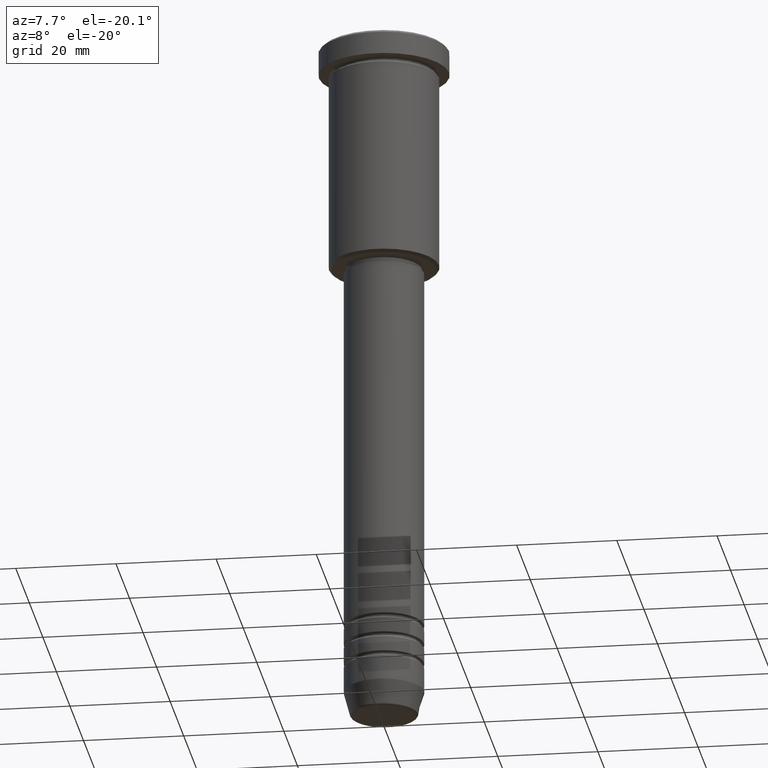
[diagram: clean part render]
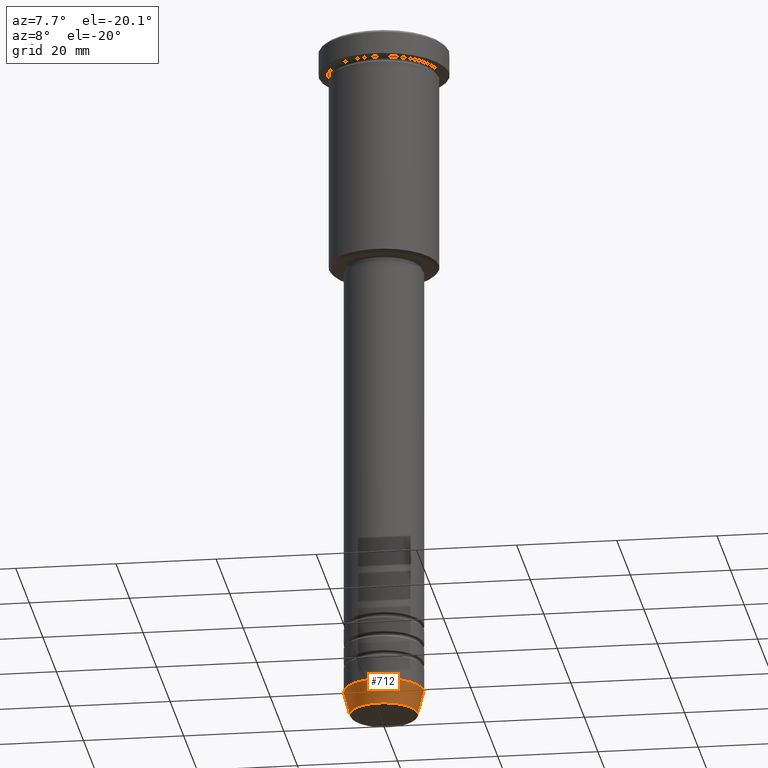
[diagram: same view with one face highlighted and labeled with its STEP entity id]
A machine part, auxiliary view. The second image highlights one B-rep face of the part: STEP entity #712.
In plain terms, the highlighted conical surface has half-angle 15 deg.
Its self-contained STEP definition (entity closure, byte-faithful):
#15 = CARTESIAN_POINT ( 'NONE',  ( 0.000000000000000000, 0.000000000000000000, -139.6294095225512706 ) ) ;
#21 = DIRECTION ( 'NONE',  ( -0.000000000000000000, -0.000000000000000000, 1.000000000000000000 ) ) ;
#63 = EDGE_CURVE ( 'NONE', #1126, #741, #387, .T. ) ;
#70 = DIRECTION ( 'NONE',  ( 0.2588190451025214611, 0.000000000000000000, 0.9659258262890679791 ) ) ;
#153 = ORIENTED_EDGE ( 'NONE', *, *, #400, .T. ) ;
#196 = VECTOR ( 'NONE', #70, 1000.000000000000114 ) ;
#198 = VERTEX_POINT ( 'NONE', #938 ) ;
#219 = DIRECTION ( 'NONE',  ( -0.000000000000000000, -0.000000000000000000, 1.000000000000000000 ) ) ;
#246 = CARTESIAN_POINT ( 'NONE',  ( 0.000000000000000000, 0.000000000000000000, -135.0000000000000000 ) ) ;
#311 = ORIENTED_EDGE ( 'NONE', *, *, #828, .F. ) ;
#317 = FACE_OUTER_BOUND ( 'NONE', #436, .T. ) ;
#356 = VECTOR ( 'NONE', #1088, 1000.000000000000114 ) ;
#364 = ORIENTED_EDGE ( 'NONE', *, *, #1025, .F. ) ;
#365 = CARTESIAN_POINT ( 'NONE',  ( -8.000000000000000000, 9.797174393178825657E-16, -135.0000000000000000 ) ) ;
#387 = CIRCLE ( 'NONE', #527, 6.759553456999436882 ) ;
#400 = EDGE_CURVE ( 'NONE', #741, #781, #907, .T. ) ;
#436 = EDGE_LOOP ( 'NONE', ( #364, #1111, #153, #311 ) ) ;
#504 = AXIS2_PLACEMENT_3D ( 'NONE', #246, #780, #988 ) ;
#525 = CIRCLE ( 'NONE', #504, 8.000000000000000000 ) ;
#527 = AXIS2_PLACEMENT_3D ( 'NONE', #15, #219, #587 ) ;
#587 = DIRECTION ( 'NONE',  ( 1.000000000000000000, 0.000000000000000000, 0.000000000000000000 ) ) ;
#596 = CARTESIAN_POINT ( 'NONE',  ( 0.000000000000000000, 0.000000000000000000, -135.0000000000000000 ) ) ;
#625 = CONICAL_SURFACE ( 'NONE', #772, 8.000000000000000000, 0.2617993877991502405 ) ;
#712 = ADVANCED_FACE ( 'NONE', ( #317 ), #625, .T. ) ;
#735 = LINE ( 'NONE', #365, #356 ) ;
#741 = VERTEX_POINT ( 'NONE', #786 ) ;
#772 = AXIS2_PLACEMENT_3D ( 'NONE', #596, #21, #838 ) ;
#780 = DIRECTION ( 'NONE',  ( -0.000000000000000000, -0.000000000000000000, 1.000000000000000000 ) ) ;
#781 = VERTEX_POINT ( 'NONE', #871 ) ;
#786 = CARTESIAN_POINT ( 'NONE',  ( 6.759553456999436882, 0.000000000000000000, -139.6294095225512706 ) ) ;
#828 = EDGE_CURVE ( 'NONE', #198, #781, #525, .T. ) ;
#838 = DIRECTION ( 'NONE',  ( 1.000000000000000000, 0.000000000000000000, 0.000000000000000000 ) ) ;
#858 = CARTESIAN_POINT ( 'NONE',  ( -6.759553456999436882, 9.037619948979304241E-16, -139.6294095225512706 ) ) ;
#871 = CARTESIAN_POINT ( 'NONE',  ( 8.000000000000000000, 0.000000000000000000, -135.0000000000000000 ) ) ;
#907 = LINE ( 'NONE', #985, #196 ) ;
#938 = CARTESIAN_POINT ( 'NONE',  ( -8.000000000000000000, 9.797174393178825657E-16, -135.0000000000000000 ) ) ;
#985 = CARTESIAN_POINT ( 'NONE',  ( 8.000000000000000000, 0.000000000000000000, -135.0000000000000000 ) ) ;
#988 = DIRECTION ( 'NONE',  ( 1.000000000000000000, 0.000000000000000000, 0.000000000000000000 ) ) ;
#1025 = EDGE_CURVE ( 'NONE', #1126, #198, #735, .T. ) ;
#1088 = DIRECTION ( 'NONE',  ( -0.2588190451025214611, 3.169619151431774186E-17, 0.9659258262890679791 ) ) ;
#1111 = ORIENTED_EDGE ( 'NONE', *, *, #63, .T. ) ;
#1126 = VERTEX_POINT ( 'NONE', #858 ) ;